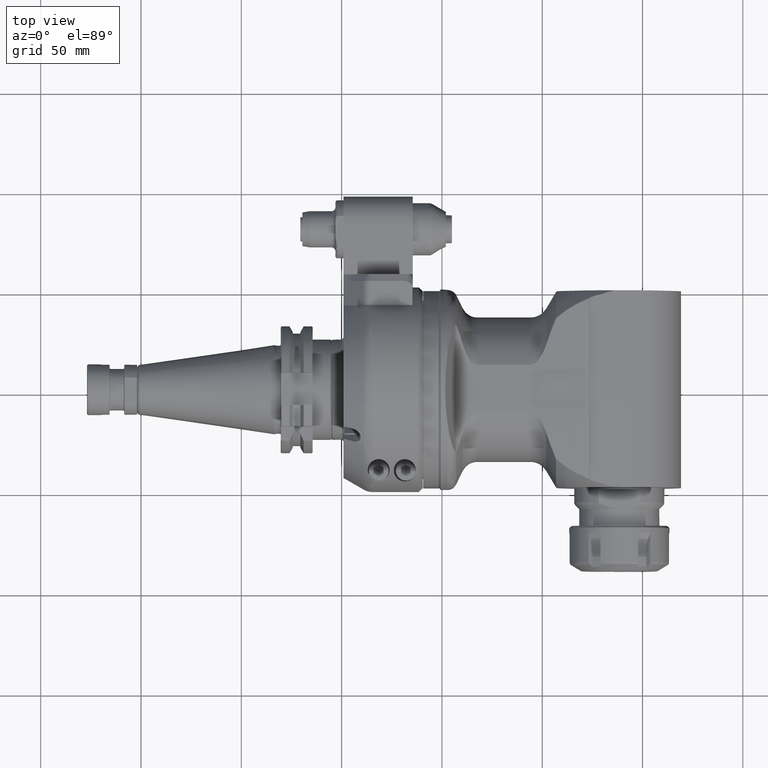
[diagram: clean part render]
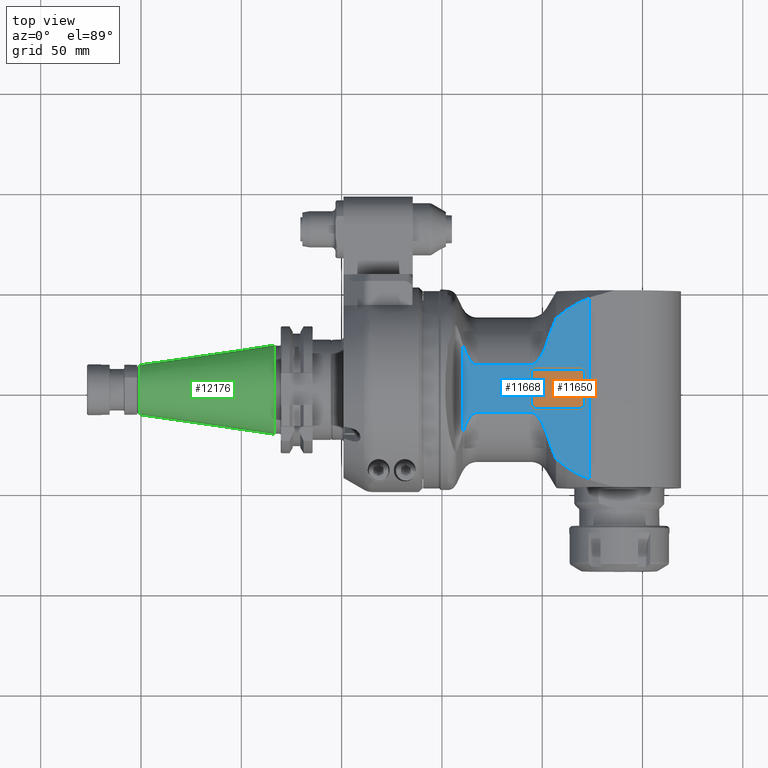
[diagram: same view with three faces highlighted in distinct colors, each labeled with its STEP entity id]
A machine part, top view with three faces highlighted in distinct colors.
Their STEP definitions:

[orange] entity #11650 — the highlighted planar face has unit normal (0, -0, 1).
#868=LINE('',#16481,#1725);
#870=LINE('',#16485,#1727);
#872=LINE('',#16489,#1729);
#874=LINE('',#16492,#1731);
#1725=VECTOR('',#13459,19.5);
#1727=VECTOR('',#13463,26.5);
#1729=VECTOR('',#13467,19.5);
#1731=VECTOR('',#13471,26.5);
#2736=FACE_OUTER_BOUND('',#3386,.T.);
#3386=EDGE_LOOP('',(#7717,#7718,#7719,#7720));
#4584=VERTEX_POINT('',#16478);
#4585=VERTEX_POINT('',#16480);
#4586=VERTEX_POINT('',#16484);
#4587=VERTEX_POINT('',#16488);
#5863=EDGE_CURVE('',#4585,#4584,#868,.T.);
#5865=EDGE_CURVE('',#4586,#4585,#870,.T.);
#5867=EDGE_CURVE('',#4587,#4586,#872,.T.);
#5869=EDGE_CURVE('',#4584,#4587,#874,.T.);
#7717=ORIENTED_EDGE('',*,*,#5863,.T.);
#7718=ORIENTED_EDGE('',*,*,#5869,.T.);
#7719=ORIENTED_EDGE('',*,*,#5867,.T.);
#7720=ORIENTED_EDGE('',*,*,#5865,.T.);
#11370=PLANE('',#12364);
#11650=ADVANCED_FACE('',(#2736),#11370,.T.);
#12364=AXIS2_PLACEMENT_3D('',#16493,#13472,#13473);
#13459=DIRECTION('',(0.,-1.,0.));
#13463=DIRECTION('',(-1.,0.,0.));
#13467=DIRECTION('',(0.,1.,0.));
#13471=DIRECTION('',(1.,0.,0.));
#13472=DIRECTION('center_axis',(0.,0.,1.));
#13473=DIRECTION('ref_axis',(1.,0.,0.));
#16478=CARTESIAN_POINT('',(234.3130969851,-9.75,33.6));
#16480=CARTESIAN_POINT('',(234.3130969851,9.75,33.6));
#16481=CARTESIAN_POINT('',(234.3130969851,9.75,33.6));
#16484=CARTESIAN_POINT('',(260.8130969851,9.75,33.6));
#16485=CARTESIAN_POINT('',(260.8130969851,9.75,33.6));
#16488=CARTESIAN_POINT('',(260.8130969851,-9.75,33.6));
#16489=CARTESIAN_POINT('',(260.8130969851,-9.75,33.6));
#16492=CARTESIAN_POINT('',(234.3130969851,-9.75,33.6));
#16493=CARTESIAN_POINT('Origin',(0.,0.,33.6));

[blue] entity #11668 — the highlighted planar face has unit normal (-0, 0, -1).
#256=(
BOUNDED_CURVE()
B_SPLINE_CURVE(2,(#16798,#16799,#16800),.UNSPECIFIED.,.F.,.F.)
B_SPLINE_CURVE_WITH_KNOTS((3,3),(-7.0566883781188,-6.95774973782874),
 .UNSPECIFIED.)
CURVE()
GEOMETRIC_REPRESENTATION_ITEM()
RATIONAL_B_SPLINE_CURVE((1.00375094347923,1.00425302240949,1.00474028515135))
REPRESENTATION_ITEM('')
);
#257=(
BOUNDED_CURVE()
B_SPLINE_CURVE(2,(#16805,#16806,#16807),.UNSPECIFIED.,.F.,.F.)
B_SPLINE_CURVE_WITH_KNOTS((3,3),(6.16316429996222,6.1904248157078),
 .UNSPECIFIED.)
CURVE()
GEOMETRIC_REPRESENTATION_ITEM()
RATIONAL_B_SPLINE_CURVE((1.11577564848434,1.11460476666033,1.11342126184614))
REPRESENTATION_ITEM('')
);
#258=(
BOUNDED_CURVE()
B_SPLINE_CURVE(2,(#16820,#16821,#16822),.UNSPECIFIED.,.F.,.F.)
B_SPLINE_CURVE_WITH_KNOTS((3,3),(2.5215742486305,4.06301752668661),
 .UNSPECIFIED.)
CURVE()
GEOMETRIC_REPRESENTATION_ITEM()
RATIONAL_B_SPLINE_CURVE((1.36765630309663,1.4577699631041,1.52066742170751))
REPRESENTATION_ITEM('')
);
#259=(
BOUNDED_CURVE()
B_SPLINE_CURVE(2,(#16824,#16825,#16826),.UNSPECIFIED.,.F.,.F.)
B_SPLINE_CURVE_WITH_KNOTS((3,3),(0.775030712287538,1.18947311921431),
 .UNSPECIFIED.)
CURVE()
GEOMETRIC_REPRESENTATION_ITEM()
RATIONAL_B_SPLINE_CURVE((1.08266443650082,1.10336027159058,1.12255210103294))
REPRESENTATION_ITEM('')
);
#260=(
BOUNDED_CURVE()
B_SPLINE_CURVE(2,(#16828,#16829,#16830),.UNSPECIFIED.,.F.,.F.)
B_SPLINE_CURVE_WITH_KNOTS((3,3),(0.39307773059177,0.696187792189114),
 .UNSPECIFIED.)
CURVE()
GEOMETRIC_REPRESENTATION_ITEM()
RATIONAL_B_SPLINE_CURVE((1.03857172074225,1.05300594660315,1.06676546580063))
REPRESENTATION_ITEM('')
);
#261=(
BOUNDED_CURVE()
B_SPLINE_CURVE(2,(#16831,#16832,#16833),.UNSPECIFIED.,.F.,.F.)
B_SPLINE_CURVE_WITH_KNOTS((3,3),(0.107918262111207,0.355594283058807),
 .UNSPECIFIED.)
CURVE()
GEOMETRIC_REPRESENTATION_ITEM()
RATIONAL_B_SPLINE_CURVE((1.00928612455467,1.01986753373372,1.03010664309034))
REPRESENTATION_ITEM('')
);
#262=(
BOUNDED_CURVE()
B_SPLINE_CURVE(2,(#16837,#16838,#16839),.UNSPECIFIED.,.F.,.F.)
B_SPLINE_CURVE_WITH_KNOTS((3,3),(6.95803843825647,7.05698155652156),
 .UNSPECIFIED.)
CURVE()
GEOMETRIC_REPRESENTATION_ITEM()
RATIONAL_B_SPLINE_CURVE((1.00474774792588,1.00426053459943,1.0037585049215))
REPRESENTATION_ITEM('')
);
#263=(
BOUNDED_CURVE()
B_SPLINE_CURVE(2,(#16841,#16842,#16843),.UNSPECIFIED.,.F.,.F.)
B_SPLINE_CURVE_WITH_KNOTS((3,3),(15.1725118771044,15.4201832348913),
 .UNSPECIFIED.)
CURVE()
GEOMETRIC_REPRESENTATION_ITEM()
RATIONAL_B_SPLINE_CURVE((1.03009681742218,1.01985780573126,1.00927649748294))
REPRESENTATION_ITEM('')
);
#264=(
BOUNDED_CURVE()
B_SPLINE_CURVE(2,(#16845,#16846,#16847),.UNSPECIFIED.,.F.,.F.)
B_SPLINE_CURVE_WITH_KNOTS((3,3),(13.0586360691569,13.3617396590739),
 .UNSPECIFIED.)
CURVE()
GEOMETRIC_REPRESENTATION_ITEM()
RATIONAL_B_SPLINE_CURVE((1.06675254216696,1.0529931866809,1.03855913239331))
REPRESENTATION_ITEM('')
);
#265=(
BOUNDED_CURVE()
B_SPLINE_CURVE(2,(#16849,#16850,#16851),.UNSPECIFIED.,.F.,.F.)
B_SPLINE_CURVE_WITH_KNOTS((3,3),(11.7660287057255,12.1804611856225),
 .UNSPECIFIED.)
CURVE()
GEOMETRIC_REPRESENTATION_ITEM()
RATIONAL_B_SPLINE_CURVE((1.12253550208667,1.10334395998691,1.08264843503662))
REPRESENTATION_ITEM('')
);
#266=(
BOUNDED_CURVE()
B_SPLINE_CURVE(2,(#16853,#16854,#16855),.UNSPECIFIED.,.F.,.F.)
B_SPLINE_CURVE_WITH_KNOTS((3,3),(11.1870091814929,12.7283913806283),
 .UNSPECIFIED.)
CURVE()
GEOMETRIC_REPRESENTATION_ITEM()
RATIONAL_B_SPLINE_CURVE((1.5206120536593,1.45771688517508,1.36760650623862))
REPRESENTATION_ITEM('')
);
#267=(
BOUNDED_CURVE()
B_SPLINE_CURVE(2,(#16883,#16884,#16885),.UNSPECIFIED.,.F.,.F.)
B_SPLINE_CURVE_WITH_KNOTS((3,3),(1.07864842205667,1.10590893779562),
 .UNSPECIFIED.)
CURVE()
GEOMETRIC_REPRESENTATION_ITEM()
RATIONAL_B_SPLINE_CURVE((1.11342126175273,1.11460476656667,1.11577564839043))
REPRESENTATION_ITEM('')
);
#412=B_SPLINE_CURVE_WITH_KNOTS('',3,(#16519,#16520,#16521,#16522,#16523,
#16524,#16525,#16526,#16527,#16528,#16529,#16530),.UNSPECIFIED.,.F.,.F.,
(4,2,2,2,2,4),(3.26256449606922,3.35979196488696,3.48380316096739,3.90334505683776,
4.48575870420334,4.52060177296934),.UNSPECIFIED.);
#424=B_SPLINE_CURVE_WITH_KNOTS('',3,(#16809,#16810,#16811,#16812,#16813,
#16814,#16815,#16816,#16817,#16818),.UNSPECIFIED.,.F.,.F.,(4,2,2,2,4),(3.59989156653281,
3.70972363098961,3.85021130199602,4.32170904660402,4.87230947984852),
 .UNSPECIFIED.);
#425=B_SPLINE_CURVE_WITH_KNOTS('',3,(#16857,#16858,#16859,#16860,#16861,
#16862,#16863,#16864,#16865,#16866),.UNSPECIFIED.,.F.,.F.,(4,2,2,2,4),(2.32747365321535,
2.87807408645728,3.34957183106157,3.49005950206689,3.59989156652281),
 .UNSPECIFIED.);
#426=B_SPLINE_CURVE_WITH_KNOTS('',3,(#16870,#16871,#16872,#16873,#16874,
#16875,#16876,#16877,#16878,#16879,#16880,#16881),.UNSPECIFIED.,.F.,.F.,
(4,2,2,2,2,4),(-4.52060177296844,-4.48575870420334,-3.90334505683776,-3.48380316096739,
-3.35979196488696,-3.26256449606922),.UNSPECIFIED.);
#764=FACE_BOUND('',#3410,.T.);
#878=LINE('',#16516,#1735);
#894=LINE('',#16835,#1751);
#895=LINE('',#16868,#1752);
#896=LINE('',#16886,#1753);
#897=LINE('',#16889,#1754);
#898=LINE('',#16893,#1755);
#899=LINE('',#16897,#1756);
#900=LINE('',#16901,#1757);
#1735=VECTOR('',#13499,26.67897826015);
#1751=VECTOR('',#13579,10.);
#1752=VECTOR('',#13580,26.67897826021);
#1753=VECTOR('',#13581,45.02224602415);
#1754=VECTOR('',#13582,15.5);
#1755=VECTOR('',#13585,22.5);
#1756=VECTOR('',#13588,15.5);
#1757=VECTOR('',#13591,22.5);
#2754=FACE_OUTER_BOUND('',#3409,.T.);
#3409=EDGE_LOOP('',(#7837,#7838,#7839,#7840,#7841,#7842,#7843,#7844,#7845,
#7846,#7847,#7848,#7849,#7850,#7851,#7852,#7853,#7854,#7855,#7856));
#3410=EDGE_LOOP('',(#7857,#7858,#7859,#7860,#7861,#7862,#7863,#7864));
#4136=CIRCLE('',#12408,2.);
#4137=CIRCLE('',#12409,2.);
#4138=CIRCLE('',#12410,2.);
#4139=CIRCLE('',#12411,2.);
#4593=VERTEX_POINT('',#16510);
#4595=VERTEX_POINT('',#16514);
#4596=VERTEX_POINT('',#16518);
#4657=VERTEX_POINT('',#16796);
#4658=VERTEX_POINT('',#16797);
#4659=VERTEX_POINT('',#16804);
#4660=VERTEX_POINT('',#16808);
#4661=VERTEX_POINT('',#16819);
#4662=VERTEX_POINT('',#16823);
#4663=VERTEX_POINT('',#16827);
#4664=VERTEX_POINT('',#16834);
#4665=VERTEX_POINT('',#16836);
#4666=VERTEX_POINT('',#16840);
#4667=VERTEX_POINT('',#16844);
#4668=VERTEX_POINT('',#16848);
#4669=VERTEX_POINT('',#16852);
#4670=VERTEX_POINT('',#16856);
#4671=VERTEX_POINT('',#16867);
#4672=VERTEX_POINT('',#16869);
#4673=VERTEX_POINT('',#16882);
#4674=VERTEX_POINT('',#16887);
#4675=VERTEX_POINT('',#16888);
#4676=VERTEX_POINT('',#16890);
#4677=VERTEX_POINT('',#16892);
#4678=VERTEX_POINT('',#16894);
#4679=VERTEX_POINT('',#16896);
#4680=VERTEX_POINT('',#16898);
#4681=VERTEX_POINT('',#16900);
#5879=EDGE_CURVE('',#4595,#4593,#878,.T.);
#5880=EDGE_CURVE('',#4593,#4596,#412,.T.);
#5952=EDGE_CURVE('',#4657,#4658,#256,.T.);
#5955=EDGE_CURVE('',#4596,#4659,#257,.T.);
#5956=EDGE_CURVE('',#4595,#4660,#424,.T.);
#5957=EDGE_CURVE('',#4661,#4660,#258,.T.);
#5958=EDGE_CURVE('',#4662,#4661,#259,.T.);
#5959=EDGE_CURVE('',#4663,#4662,#260,.T.);
#5960=EDGE_CURVE('',#4658,#4663,#261,.T.);
#5961=EDGE_CURVE('',#4664,#4657,#894,.T.);
#5962=EDGE_CURVE('',#4665,#4664,#262,.T.);
#5963=EDGE_CURVE('',#4666,#4665,#263,.T.);
#5964=EDGE_CURVE('',#4667,#4666,#264,.T.);
#5965=EDGE_CURVE('',#4668,#4667,#265,.T.);
#5966=EDGE_CURVE('',#4669,#4668,#266,.T.);
#5967=EDGE_CURVE('',#4669,#4670,#425,.T.);
#5968=EDGE_CURVE('',#4671,#4670,#895,.T.);
#5969=EDGE_CURVE('',#4672,#4671,#426,.T.);
#5970=EDGE_CURVE('',#4673,#4672,#267,.T.);
#5971=EDGE_CURVE('',#4659,#4673,#896,.T.);
#5972=EDGE_CURVE('',#4674,#4675,#897,.T.);
#5973=EDGE_CURVE('',#4675,#4676,#4136,.T.);
#5974=EDGE_CURVE('',#4676,#4677,#898,.T.);
#5975=EDGE_CURVE('',#4677,#4678,#4137,.T.);
#5976=EDGE_CURVE('',#4678,#4679,#899,.T.);
#5977=EDGE_CURVE('',#4679,#4680,#4138,.T.);
#5978=EDGE_CURVE('',#4680,#4681,#900,.T.);
#5979=EDGE_CURVE('',#4681,#4674,#4139,.T.);
#7837=ORIENTED_EDGE('',*,*,#5955,.F.);
#7838=ORIENTED_EDGE('',*,*,#5880,.F.);
#7839=ORIENTED_EDGE('',*,*,#5879,.F.);
#7840=ORIENTED_EDGE('',*,*,#5956,.T.);
#7841=ORIENTED_EDGE('',*,*,#5957,.F.);
#7842=ORIENTED_EDGE('',*,*,#5958,.F.);
#7843=ORIENTED_EDGE('',*,*,#5959,.F.);
#7844=ORIENTED_EDGE('',*,*,#5960,.F.);
#7845=ORIENTED_EDGE('',*,*,#5952,.F.);
#7846=ORIENTED_EDGE('',*,*,#5961,.F.);
#7847=ORIENTED_EDGE('',*,*,#5962,.F.);
#7848=ORIENTED_EDGE('',*,*,#5963,.F.);
#7849=ORIENTED_EDGE('',*,*,#5964,.F.);
#7850=ORIENTED_EDGE('',*,*,#5965,.F.);
#7851=ORIENTED_EDGE('',*,*,#5966,.F.);
#7852=ORIENTED_EDGE('',*,*,#5967,.T.);
#7853=ORIENTED_EDGE('',*,*,#5968,.F.);
#7854=ORIENTED_EDGE('',*,*,#5969,.F.);
#7855=ORIENTED_EDGE('',*,*,#5970,.F.);
#7856=ORIENTED_EDGE('',*,*,#5971,.F.);
#7857=ORIENTED_EDGE('',*,*,#5972,.T.);
#7858=ORIENTED_EDGE('',*,*,#5973,.T.);
#7859=ORIENTED_EDGE('',*,*,#5974,.T.);
#7860=ORIENTED_EDGE('',*,*,#5975,.T.);
#7861=ORIENTED_EDGE('',*,*,#5976,.T.);
#7862=ORIENTED_EDGE('',*,*,#5977,.T.);
#7863=ORIENTED_EDGE('',*,*,#5978,.T.);
#7864=ORIENTED_EDGE('',*,*,#5979,.T.);
#11378=PLANE('',#12407);
#11668=ADVANCED_FACE('',(#2754,#764),#11378,.F.);
#12407=AXIS2_PLACEMENT_3D('',#16803,#13577,#13578);
#12408=AXIS2_PLACEMENT_3D('',#16891,#13583,#13584);
#12409=AXIS2_PLACEMENT_3D('',#16895,#13586,#13587);
#12410=AXIS2_PLACEMENT_3D('',#16899,#13589,#13590);
#12411=AXIS2_PLACEMENT_3D('',#16902,#13592,#13593);
#13499=DIRECTION('',(-1.,0.,0.));
#13577=DIRECTION('center_axis',(0.,0.,-1.));
#13578=DIRECTION('ref_axis',(-1.,0.,0.));
#13579=DIRECTION('',(0.,-1.,0.));
#13580=DIRECTION('',(1.,0.,0.));
#13581=DIRECTION('',(0.,1.,0.));
#13582=DIRECTION('',(0.,-1.,0.));
#13583=DIRECTION('center_axis',(0.,0.,-1.));
#13584=DIRECTION('ref_axis',(1.,0.,0.));
#13585=DIRECTION('',(-1.,0.,0.));
#13586=DIRECTION('center_axis',(0.,0.,-1.));
#13587=DIRECTION('ref_axis',(0.,-1.,0.));
#13588=DIRECTION('',(0.,1.,0.));
#13589=DIRECTION('center_axis',(0.,0.,-1.));
#13590=DIRECTION('ref_axis',(-1.,0.,0.));
#13591=DIRECTION('',(1.,0.,0.));
#13592=DIRECTION('center_axis',(0.,0.,-1.));
#13593=DIRECTION('ref_axis',(0.,1.,0.));
#16510=CARTESIAN_POINT('',(207.1879662404,-11.8321595662,34.));
#16514=CARTESIAN_POINT('',(233.8669445005,-11.8321595662,34.));
#16516=CARTESIAN_POINT('',(233.8669445005,-11.8321595662,34.));
#16518=CARTESIAN_POINT('',(199.9375039441,-22.22403069258,34.));
#16519=CARTESIAN_POINT('Ctrl Pts',(207.1879662404,-11.8321595661992,34.));
#16520=CARTESIAN_POINT('Ctrl Pts',(206.863874677674,-11.8321595661992,34.));
#16521=CARTESIAN_POINT('Ctrl Pts',(206.48271510493,-11.9094141530462,34.));
#16522=CARTESIAN_POINT('Ctrl Pts',(205.793568991128,-12.1719558722867,34.));
#16523=CARTESIAN_POINT('Ctrl Pts',(205.372427555173,-12.4340633292095,34.));
#16524=CARTESIAN_POINT('Ctrl Pts',(203.953201733516,-13.5603738735786,34.));
#16525=CARTESIAN_POINT('Ctrl Pts',(203.008613998233,-14.9474573060366,34.));
#16526=CARTESIAN_POINT('Ctrl Pts',(201.374850143006,-17.860432723607,34.));
#16527=CARTESIAN_POINT('Ctrl Pts',(200.582986316568,-19.8279709388041,34.));
#16528=CARTESIAN_POINT('Ctrl Pts',(200.000606743342,-21.9803869181482,34.));
#16529=CARTESIAN_POINT('Ctrl Pts',(199.968608168858,-22.1021166285149,34.));
#16530=CARTESIAN_POINT('Ctrl Pts',(199.937503944106,-22.2240306925814,34.));
#16796=CARTESIAN_POINT('',(263.053097479116,-44.9805368840876,33.9999997132387));
#16797=CARTESIAN_POINT('',(261.7592494227,-44.54518184073,34.));
#16798=CARTESIAN_POINT('Ctrl Pts',(263.053097670176,-44.9805363271857,34.));
#16799=CARTESIAN_POINT('Ctrl Pts',(262.403027620066,-44.7621878193078,34.));
#16800=CARTESIAN_POINT('Ctrl Pts',(261.759249422742,-44.5451818407373,34.));
#16803=CARTESIAN_POINT('Origin',(238.1030186341,-45.,34.));
#16804=CARTESIAN_POINT('',(199.8639272009,-22.51112301208,34.));
#16805=CARTESIAN_POINT('Ctrl Pts',(199.937503944274,-22.2240306919466,34.));
#16806=CARTESIAN_POINT('Ctrl Pts',(199.900951665729,-22.3672985876735,34.));
#16807=CARTESIAN_POINT('Ctrl Pts',(199.863927201081,-22.5111230114919,34.));
#16808=CARTESIAN_POINT('',(241.6611731346,-22.00568108465,34.));
#16809=CARTESIAN_POINT('Ctrl Pts',(233.8669445005,-11.8321595661992,34.));
#16810=CARTESIAN_POINT('Ctrl Pts',(234.233051382023,-11.8321595661992,34.));
#16811=CARTESIAN_POINT('Ctrl Pts',(234.663546023659,-11.9198161783188,34.));
#16812=CARTESIAN_POINT('Ctrl Pts',(235.443066222336,-12.2174235510846,34.));
#16813=CARTESIAN_POINT('Ctrl Pts',(235.920003028459,-12.5146101157905,34.));
#16814=CARTESIAN_POINT('Ctrl Pts',(237.519070508123,-13.7812532581952,34.));
#16815=CARTESIAN_POINT('Ctrl Pts',(238.591879803817,-15.3323954779161,34.));
#16816=CARTESIAN_POINT('Ctrl Pts',(240.279862271908,-18.2918418451289,34.));
#16817=CARTESIAN_POINT('Ctrl Pts',(241.066668194062,-20.1105628780334,34.));
#16818=CARTESIAN_POINT('Ctrl Pts',(241.661173134559,-22.0056810846628,34.));
#16819=CARTESIAN_POINT('',(246.4733509227,-35.05497133849,34.));
#16820=CARTESIAN_POINT('Ctrl Pts',(246.473350922763,-35.0549713387466,34.));
#16821=CARTESIAN_POINT('Ctrl Pts',(243.517009779118,-27.921577781361,34.));
#16822=CARTESIAN_POINT('Ctrl Pts',(241.661173134554,-22.0056810846926,34.));
#16823=CARTESIAN_POINT('',(251.759250416998,-39.194834325068,33.9999997228893));
#16824=CARTESIAN_POINT('Ctrl Pts',(251.759250499231,-39.1948342225807,34.));
#16825=CARTESIAN_POINT('Ctrl Pts',(248.968940732709,-37.0621849185798,34.));
#16826=CARTESIAN_POINT('Ctrl Pts',(246.473350922697,-35.0549713384935,34.));
#16827=CARTESIAN_POINT('',(256.759249426142,-42.2329602483583,33.9999999992183));
#16828=CARTESIAN_POINT('Ctrl Pts',(256.759249426316,-42.2329602480682,34.));
#16829=CARTESIAN_POINT('Ctrl Pts',(254.165973320667,-40.68051748898,34.));
#16830=CARTESIAN_POINT('Ctrl Pts',(251.75925055859,-39.1948341009734,34.));
#16831=CARTESIAN_POINT('Ctrl Pts',(261.759249422701,-44.5451818407277,34.));
#16832=CARTESIAN_POINT('Ctrl Pts',(259.192636406154,-43.3699887142369,34.));
#16833=CARTESIAN_POINT('Ctrl Pts',(256.759249426468,-42.2329602476605,34.));
#16834=CARTESIAN_POINT('',(263.053097479116,44.9805368840876,33.9999997132387));
#16835=CARTESIAN_POINT('',(263.0530967692,-22.5000000000001,34.));
#16836=CARTESIAN_POINT('',(261.7592494227,44.54518184073,34.));
#16837=CARTESIAN_POINT('Ctrl Pts',(261.759249422718,44.5451818407291,34.));
#16838=CARTESIAN_POINT('Ctrl Pts',(262.403027620054,44.7621878193036,34.));
#16839=CARTESIAN_POINT('Ctrl Pts',(263.053097670176,44.9805363271856,34.));
#16840=CARTESIAN_POINT('',(256.759249426142,42.2329602483584,33.9999999992183));
#16841=CARTESIAN_POINT('Ctrl Pts',(256.759249426468,42.2329602476606,34.));
#16842=CARTESIAN_POINT('Ctrl Pts',(259.192636406154,43.3699887142369,34.));
#16843=CARTESIAN_POINT('Ctrl Pts',(261.759249422701,44.5451818407277,34.));
#16844=CARTESIAN_POINT('',(251.759249442687,39.1948334183914,33.9999999944173));
#16845=CARTESIAN_POINT('Ctrl Pts',(251.759249445491,39.1948334138513,34.));
#16846=CARTESIAN_POINT('Ctrl Pts',(254.165972721469,40.6805171302754,34.));
#16847=CARTESIAN_POINT('Ctrl Pts',(256.759249426316,42.2329602480683,34.));
#16848=CARTESIAN_POINT('',(246.473350922444,35.0549713383488,34.0000000000025));
#16849=CARTESIAN_POINT('Ctrl Pts',(246.473350921874,35.0549713378312,34.));
#16850=CARTESIAN_POINT('Ctrl Pts',(248.968940261291,37.062184539435,34.));
#16851=CARTESIAN_POINT('Ctrl Pts',(251.759249444296,39.1948334162878,34.));
#16852=CARTESIAN_POINT('',(241.6611731346,22.00568108467,34.));
#16853=CARTESIAN_POINT('Ctrl Pts',(241.661173134559,22.0056810847107,34.));
#16854=CARTESIAN_POINT('Ctrl Pts',(243.517009779122,27.9215777813681,34.));
#16855=CARTESIAN_POINT('Ctrl Pts',(246.47335092276,35.0549713387377,34.));
#16856=CARTESIAN_POINT('',(233.8669445006,11.8321595662,34.));
#16857=CARTESIAN_POINT('Ctrl Pts',(241.661173134565,22.005681084681,34.));
#16858=CARTESIAN_POINT('Ctrl Pts',(241.066668194067,20.1105628780451,34.));
#16859=CARTESIAN_POINT('Ctrl Pts',(240.279862271911,18.291841845134,34.));
#16860=CARTESIAN_POINT('Ctrl Pts',(238.591879803817,15.3323954779161,34.));
#16861=CARTESIAN_POINT('Ctrl Pts',(237.519070508123,13.7812532581953,34.));
#16862=CARTESIAN_POINT('Ctrl Pts',(235.920003028459,12.5146101157905,34.));
#16863=CARTESIAN_POINT('Ctrl Pts',(235.443066222336,12.2174235510846,34.));
#16864=CARTESIAN_POINT('Ctrl Pts',(234.663546023658,11.9198161783188,34.));
#16865=CARTESIAN_POINT('Ctrl Pts',(234.233051382023,11.8321595661992,34.));
#16866=CARTESIAN_POINT('Ctrl Pts',(233.8669445005,11.8321595661992,34.));
#16867=CARTESIAN_POINT('',(207.1879662404,11.8321595662,34.));
#16868=CARTESIAN_POINT('',(207.1879662404,11.8321595662,34.));
#16869=CARTESIAN_POINT('',(199.9375039441,22.22403069257,34.));
#16870=CARTESIAN_POINT('Ctrl Pts',(199.937503944108,22.224030692572,34.));
#16871=CARTESIAN_POINT('Ctrl Pts',(199.968608168859,22.1021166285086,34.));
#16872=CARTESIAN_POINT('Ctrl Pts',(200.000606743343,21.9803869181451,34.));
#16873=CARTESIAN_POINT('Ctrl Pts',(200.582986316568,19.8279709388041,34.));
#16874=CARTESIAN_POINT('Ctrl Pts',(201.374850143006,17.860432723607,34.));
#16875=CARTESIAN_POINT('Ctrl Pts',(203.008613998233,14.9474573060366,34.));
#16876=CARTESIAN_POINT('Ctrl Pts',(203.953201733516,13.5603738735786,34.));
#16877=CARTESIAN_POINT('Ctrl Pts',(205.372427555173,12.4340633292095,34.));
#16878=CARTESIAN_POINT('Ctrl Pts',(205.793568991128,12.1719558722867,34.));
#16879=CARTESIAN_POINT('Ctrl Pts',(206.48271510493,11.9094141530462,34.));
#16880=CARTESIAN_POINT('Ctrl Pts',(206.863874677674,11.8321595661992,34.));
#16881=CARTESIAN_POINT('Ctrl Pts',(207.1879662404,11.8321595661992,34.));
#16882=CARTESIAN_POINT('',(199.8639272009,22.51112301207,34.));
#16883=CARTESIAN_POINT('Ctrl Pts',(199.86392720093,22.5111230120776,34.));
#16884=CARTESIAN_POINT('Ctrl Pts',(199.900951665573,22.3672985882799,34.));
#16885=CARTESIAN_POINT('Ctrl Pts',(199.937503944114,22.2240306925737,34.));
#16886=CARTESIAN_POINT('',(199.8639272009,-22.51112301208,34.));
#16887=CARTESIAN_POINT('',(260.8130969851,7.75,34.));
#16888=CARTESIAN_POINT('',(260.8130969851,-7.75,34.));
#16889=CARTESIAN_POINT('',(260.8130969851,7.75,34.));
#16890=CARTESIAN_POINT('',(258.8130969851,-9.75,34.));
#16891=CARTESIAN_POINT('Origin',(258.8130969851,-7.75,34.));
#16892=CARTESIAN_POINT('',(236.3130969851,-9.75,34.));
#16893=CARTESIAN_POINT('',(258.8130969851,-9.75,34.));
#16894=CARTESIAN_POINT('',(234.3130969851,-7.75,34.));
#16895=CARTESIAN_POINT('Origin',(236.3130969851,-7.75,34.));
#16896=CARTESIAN_POINT('',(234.3130969851,7.75,34.));
#16897=CARTESIAN_POINT('',(234.3130969851,-7.75,34.));
#16898=CARTESIAN_POINT('',(236.3130969851,9.75,34.));
#16899=CARTESIAN_POINT('Origin',(236.3130969851,7.75,34.));
#16900=CARTESIAN_POINT('',(258.8130969851,9.75,34.));
#16901=CARTESIAN_POINT('',(236.3130969851,9.75,34.));
#16902=CARTESIAN_POINT('Origin',(258.8130969851,7.75,34.));

[green] entity #12176 — the highlighted conical surface has half-angle 8.297 deg.
#191=CONICAL_SURFACE('',#13275,17.33109441571,0.144812411498922);
#1624=LINE('',#66405,#2481);
#2481=VECTOR('',#16045,17.33109441571);
#3262=FACE_OUTER_BOUND('',#3985,.T.);
#3985=EDGE_LOOP('',(#10797,#10798,#10799,#10800,#10801,#10802));
#4506=CIRCLE('',#13273,22.225);
#4507=CIRCLE('',#13274,22.225);
#4508=CIRCLE('',#13276,12.43718883141);
#4509=CIRCLE('',#13277,12.43718883141);
#5673=VERTEX_POINT('',#66398);
#5674=VERTEX_POINT('',#66399);
#5675=VERTEX_POINT('',#66404);
#5676=VERTEX_POINT('',#66406);
#7406=EDGE_CURVE('',#5673,#5674,#4506,.T.);
#7408=EDGE_CURVE('',#5674,#5673,#4507,.T.);
#7409=EDGE_CURVE('',#5673,#5675,#1624,.T.);
#7410=EDGE_CURVE('',#5676,#5675,#4508,.T.);
#7411=EDGE_CURVE('',#5675,#5676,#4509,.T.);
#10797=ORIENTED_EDGE('',*,*,#7406,.F.);
#10798=ORIENTED_EDGE('',*,*,#7409,.T.);
#10799=ORIENTED_EDGE('',*,*,#7410,.F.);
#10800=ORIENTED_EDGE('',*,*,#7411,.F.);
#10801=ORIENTED_EDGE('',*,*,#7409,.F.);
#10802=ORIENTED_EDGE('',*,*,#7408,.F.);
#12176=ADVANCED_FACE('',(#3262),#191,.T.);
#13273=AXIS2_PLACEMENT_3D('',#66400,#16038,#16039);
#13274=AXIS2_PLACEMENT_3D('',#66402,#16041,#16042);
#13275=AXIS2_PLACEMENT_3D('',#66403,#16043,#16044);
#13276=AXIS2_PLACEMENT_3D('',#66407,#16046,#16047);
#13277=AXIS2_PLACEMENT_3D('',#66408,#16048,#16049);
#16038=DIRECTION('center_axis',(1.,0.,0.));
#16039=DIRECTION('ref_axis',(0.,-1.,0.));
#16041=DIRECTION('center_axis',(1.,0.,0.));
#16042=DIRECTION('ref_axis',(0.,-1.,0.));
#16043=DIRECTION('center_axis',(1.,0.,0.));
#16044=DIRECTION('ref_axis',(0.,0.,1.));
#16045=DIRECTION('',(-0.98953299358046,-1.76724869581176E-17,0.144306807239621));
#16046=DIRECTION('center_axis',(-1.,0.,0.));
#16047=DIRECTION('ref_axis',(0.,-1.,0.));
#16048=DIRECTION('center_axis',(-1.,0.,0.));
#16049=DIRECTION('ref_axis',(0.,-1.,0.));
#66398=CARTESIAN_POINT('',(-86.,0.,-22.225));
#66399=CARTESIAN_POINT('',(-86.0000000000009,22.2249999999967,-2.72177751110459E-15));
#66400=CARTESIAN_POINT('Origin',(-86.,0.,0.));
#66402=CARTESIAN_POINT('Origin',(-86.,0.,0.));
#66403=CARTESIAN_POINT('Origin',(-119.55823010543,0.,0.));
#66404=CARTESIAN_POINT('',(-153.1164602109,1.5231163492777E-15,-12.4371888314096));
#66405=CARTESIAN_POINT('',(-119.55823010543,2.12244693019198E-15,-17.33109441571));
#66406=CARTESIAN_POINT('',(-153.1164602109,-12.43718883141,0.));
#66407=CARTESIAN_POINT('Origin',(-153.1164602109,0.,0.));
#66408=CARTESIAN_POINT('Origin',(-153.1164602109,0.,0.));